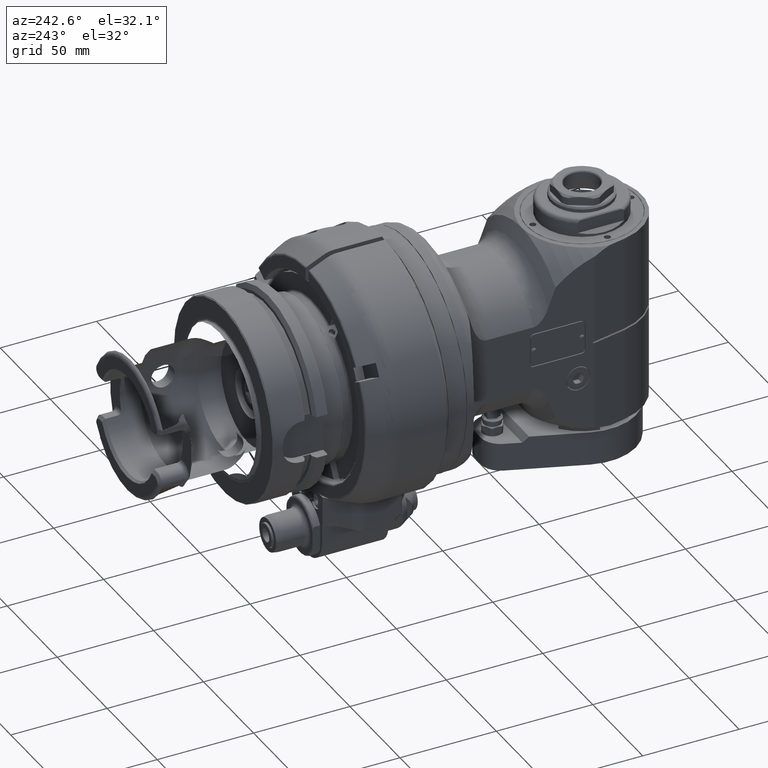
[diagram: clean part render]
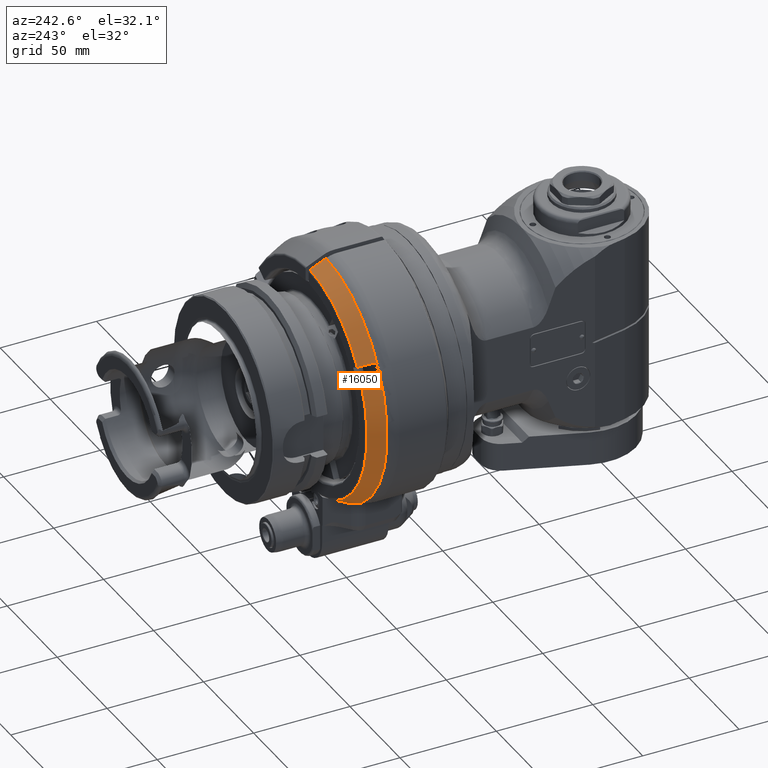
[diagram: same view with one face highlighted and labeled with its STEP entity id]
A machine part, auxiliary view. The second image highlights one B-rep face of the part: STEP entity #16050.
In plain terms, the highlighted conical surface has half-angle 25 deg.
Its self-contained STEP definition (entity closure, byte-faithful):
#88=B_SPLINE_CURVE_WITH_KNOTS('',3,(#23991,#23992,#23993,#23994,#23995,
#23996,#23997),.UNSPECIFIED.,.F.,.F.,(4,1,1,1,4),(0.,0.25,0.5,0.75,1.),
 .UNSPECIFIED.);
#137=B_SPLINE_CURVE_WITH_KNOTS('',3,(#26432,#26433,#26434,#26435,#26436,
#26437,#26438,#26439,#26440,#26441),.UNSPECIFIED.,.F.,.F.,(4,3,3,4),(0.,
0.3333333333333,0.6666666666667,0.999998482989638),.UNSPECIFIED.);
#139=B_SPLINE_CURVE_WITH_KNOTS('',3,(#26458,#26459,#26460,#26461,#26462,
#26463,#26464,#26465,#26466,#26467),.UNSPECIFIED.,.F.,.F.,(4,1,1,1,1,1,
1,4),(0.,0.1428571428571,0.2857142857143,0.4285714285714,0.5714285714286,
0.7142857142857,0.8571428571429,1.),.UNSPECIFIED.);
#140=B_SPLINE_CURVE_WITH_KNOTS('',3,(#26471,#26472,#26473,#26474,#26475,
#26476,#26477,#26478,#26479,#26480),.UNSPECIFIED.,.F.,.F.,(4,3,3,4),(1.02922724794462E-5,
0.3333333333333,0.6666666666667,1.),.UNSPECIFIED.);
#141=B_SPLINE_CURVE_WITH_KNOTS('',3,(#26484,#26485,#26486,#26487,#26488,
#26489,#26490,#26491,#26492,#26493),.UNSPECIFIED.,.F.,.F.,(4,3,3,4),(0.,
0.3333333333333,0.6666666666667,0.999990054059237),.UNSPECIFIED.);
#540=CONICAL_SURFACE('',#17251,60.72877327237,0.436332312998582);
#4036=FACE_OUTER_BOUND('',#4985,.T.);
#4985=EDGE_LOOP('',(#11794,#11795,#11796,#11797,#11798,#11799,#11800,#11801,
#11802));
#6052=CIRCLE('',#17250,62.68830901851);
#6053=CIRCLE('',#17252,58.76923752623);
#6054=CIRCLE('',#17253,62.46361509432);
#6055=CIRCLE('',#17254,58.76923752623);
#6775=VERTEX_POINT('',#23937);
#6777=VERTEX_POINT('',#23941);
#7026=VERTEX_POINT('',#26429);
#7027=VERTEX_POINT('',#26431);
#7030=VERTEX_POINT('',#26457);
#7031=VERTEX_POINT('',#26468);
#7032=VERTEX_POINT('',#26470);
#7033=VERTEX_POINT('',#26481);
#7034=VERTEX_POINT('',#26483);
#8517=EDGE_CURVE('',#6777,#6775,#88,.T.);
#8889=EDGE_CURVE('',#7027,#7026,#137,.T.);
#8893=EDGE_CURVE('',#7027,#6777,#6052,.T.);
#8894=EDGE_CURVE('',#6775,#7030,#139,.T.);
#8895=EDGE_CURVE('',#7031,#7026,#6053,.T.);
#8896=EDGE_CURVE('',#7031,#7032,#140,.T.);
#8897=EDGE_CURVE('',#7033,#7032,#6054,.T.);
#8898=EDGE_CURVE('',#7033,#7034,#141,.T.);
#8899=EDGE_CURVE('',#7030,#7034,#6055,.T.);
#11794=ORIENTED_EDGE('',*,*,#8894,.F.);
#11795=ORIENTED_EDGE('',*,*,#8517,.F.);
#11796=ORIENTED_EDGE('',*,*,#8893,.F.);
#11797=ORIENTED_EDGE('',*,*,#8889,.T.);
#11798=ORIENTED_EDGE('',*,*,#8895,.F.);
#11799=ORIENTED_EDGE('',*,*,#8896,.T.);
#11800=ORIENTED_EDGE('',*,*,#8897,.F.);
#11801=ORIENTED_EDGE('',*,*,#8898,.T.);
#11802=ORIENTED_EDGE('',*,*,#8899,.F.);
#16050=ADVANCED_FACE('',(#4036),#540,.T.);
#17250=AXIS2_PLACEMENT_3D('',#26455,#19672,#19673);
#17251=AXIS2_PLACEMENT_3D('',#26456,#19674,#19675);
#17252=AXIS2_PLACEMENT_3D('',#26469,#19676,#19677);
#17253=AXIS2_PLACEMENT_3D('',#26482,#19678,#19679);
#17254=AXIS2_PLACEMENT_3D('',#26494,#19680,#19681);
#19672=DIRECTION('center_axis',(0.,-1.,0.));
#19673=DIRECTION('ref_axis',(-0.0239279040962907,0.,0.999713686715131));
#19674=DIRECTION('center_axis',(0.,-1.,0.));
#19675=DIRECTION('ref_axis',(0.,0.,1.));
#19676=DIRECTION('center_axis',(0.,1.,0.));
#19677=DIRECTION('ref_axis',(-0.834710749186479,0.,0.550688628167086));
#19678=DIRECTION('center_axis',(0.,1.,0.));
#19679=DIRECTION('ref_axis',(-0.892681134667265,0.,0.450688797075282));
#19680=DIRECTION('center_axis',(0.,1.,0.));
#19681=DIRECTION('ref_axis',(-0.243522784786207,0.,-0.969895176444326));
#23937=CARTESIAN_POINT('',(-21.30096755004,37.460254874,-57.));
#23941=CARTESIAN_POINT('',(-26.09260599488,33.51814209375,-57.));
#23991=CARTESIAN_POINT('Ctrl Pts',(-26.09260599488,33.51814209375,-57.));
#23992=CARTESIAN_POINT('Ctrl Pts',(-25.67237555613,33.89324105369,-57.));
#23993=CARTESIAN_POINT('Ctrl Pts',(-24.84216155105,34.61929576547,-57.));
#23994=CARTESIAN_POINT('Ctrl Pts',(-23.62960829543,35.63651287314,-57.));
#23995=CARTESIAN_POINT('Ctrl Pts',(-22.44847434837,36.58547532819,-57.));
#23996=CARTESIAN_POINT('Ctrl Pts',(-21.68003557961,37.17568898049,-57.));
#23997=CARTESIAN_POINT('Ctrl Pts',(-21.30096755004,37.460254874,-57.));
#26429=CARTESIAN_POINT('',(-1.49999981595475,41.9226180501157,58.7500917359249));
#26431=CARTESIAN_POINT('',(-1.49999987347283,33.5181469863228,62.6703582399581));
#26432=CARTESIAN_POINT('Ctrl Pts',(-1.499999846154,33.51815187804,62.67035595862));
#26433=CARTESIAN_POINT('Ctrl Pts',(-1.499999846154,34.4775404334,62.22285760339));
#26434=CARTESIAN_POINT('Ctrl Pts',(-1.499999846154,35.4284205046999,61.7793252114701));
#26435=CARTESIAN_POINT('Ctrl Pts',(-1.499999846154,36.3707146110664,61.3397948939785));
#26436=CARTESIAN_POINT('Ctrl Pts',(-1.499999846154,37.3130087174332,60.9002645764867));
#26437=CARTESIAN_POINT('Ctrl Pts',(-1.499999846154,38.2467168588668,60.4647363334233));
#26438=CARTESIAN_POINT('Ctrl Pts',(-1.499999846154,39.1720127283511,60.0331291183115));
#26439=CARTESIAN_POINT('Ctrl Pts',(-1.499999846154,40.0973043867849,59.6015238674578));
#26440=CARTESIAN_POINT('Ctrl Pts',(-1.499999846154,41.0141838498383,59.1738396088664));
#26441=CARTESIAN_POINT('Ctrl Pts',(-1.499999846154,41.9226180502272,58.7500917361653));
#26455=CARTESIAN_POINT('Origin',(0.,33.5181420938,0.));
#26456=CARTESIAN_POINT('Origin',(0.,37.72038006238,0.));
#26457=CARTESIAN_POINT('',(-14.3116483826,41.9226180307,-57.00000000001));
#26458=CARTESIAN_POINT('Ctrl Pts',(-21.30096755004,37.460254874,-57.));
#26459=CARTESIAN_POINT('Ctrl Pts',(-20.94447069907,37.7278766121,-57.));
#26460=CARTESIAN_POINT('Ctrl Pts',(-20.23855981856,38.24600016402,-57.));
#26461=CARTESIAN_POINT('Ctrl Pts',(-19.20276538815,38.97209705637,-57.));
#26462=CARTESIAN_POINT('Ctrl Pts',(-18.18764676065,39.65038796842,-57.));
#26463=CARTESIAN_POINT('Ctrl Pts',(-17.19206106294,40.28307399592,-57.));
#26464=CARTESIAN_POINT('Ctrl Pts',(-16.21458784317,40.87242036509,-57.));
#26465=CARTESIAN_POINT('Ctrl Pts',(-15.25412479574,41.42036887335,-56.99999999999));
#26466=CARTESIAN_POINT('Ctrl Pts',(-14.62397832403,41.75950799857,-57.00000000001));
#26467=CARTESIAN_POINT('Ctrl Pts',(-14.3116483826,41.9226180307,-57.00000000001));
#26468=CARTESIAN_POINT('',(-49.0553145220299,41.9226180915274,32.3635504137044));
#26469=CARTESIAN_POINT('Origin',(0.,41.92261803097,0.));
#26470=CARTESIAN_POINT('',(-52.26009079782,33.99999976923,34.21382937432));
#26471=CARTESIAN_POINT('Ctrl Pts',(-49.055314305972,41.9226180952564,32.3635508040626));
#26472=CARTESIAN_POINT('Ctrl Pts',(-49.3974984823616,41.0767839787431,32.5611109304136));
#26473=CARTESIAN_POINT('Ctrl Pts',(-49.7442675862108,40.219586126272,32.7613181658675));
#26474=CARTESIAN_POINT('Ctrl Pts',(-50.0956288804899,39.3510061625411,32.9641767037024));
#26475=CARTESIAN_POINT('Ctrl Pts',(-50.4470010240227,38.4823993789968,33.1670415053568));
#26476=CARTESIAN_POINT('Ctrl Pts',(-50.8029656415829,37.6024097812732,33.3725577731272));
#26477=CARTESIAN_POINT('Ctrl Pts',(-51.1636906715648,36.7106215990039,33.5808224662906));
#26478=CARTESIAN_POINT('Ctrl Pts',(-51.5244157015465,35.8188334167349,33.789087159454));
#26479=CARTESIAN_POINT('Ctrl Pts',(-51.8899011439497,34.91524664992,34.0001002780105));
#26480=CARTESIAN_POINT('Ctrl Pts',(-52.2600907978184,33.99999976923,34.2138293743228));
#26481=CARTESIAN_POINT('',(-55.76009079782,33.99999976923,28.15165154783));
#26482=CARTESIAN_POINT('Origin',(0.,33.99999976923,0.));
#26483=CARTESIAN_POINT('',(-52.555314082174,41.9226180895401,26.3013733482782));
#26484=CARTESIAN_POINT('Ctrl Pts',(-55.7600907978181,33.99999976923,28.1516515478334));
#26485=CARTESIAN_POINT('Ctrl Pts',(-55.3900420161719,34.91489836126,27.9380037841367));
#26486=CARTESIAN_POINT('Ctrl Pts',(-55.0246504075554,35.8182531585049,27.7270448405423));
#26487=CARTESIAN_POINT('Ctrl Pts',(-54.6639708313295,36.7099289850956,27.518806390117));
#26488=CARTESIAN_POINT('Ctrl Pts',(-54.3032912551034,37.6016048116866,27.3105679396917));
#26489=CARTESIAN_POINT('Ctrl Pts',(-53.9473237112681,38.4816016676234,27.1050499824356));
#26490=CARTESIAN_POINT('Ctrl Pts',(-53.5959042560119,39.3503254226169,26.902157865345));
#26491=CARTESIAN_POINT('Ctrl Pts',(-53.2444952863471,40.2190232567851,26.6992718021133));
#26492=CARTESIAN_POINT('Ctrl Pts',(-52.8976341338554,41.0764486627295,26.4990114223508));
#26493=CARTESIAN_POINT('Ctrl Pts',(-52.5553143054235,41.9226180931607,26.3013729772567));
#26494=CARTESIAN_POINT('Origin',(0.,41.92261803097,0.));